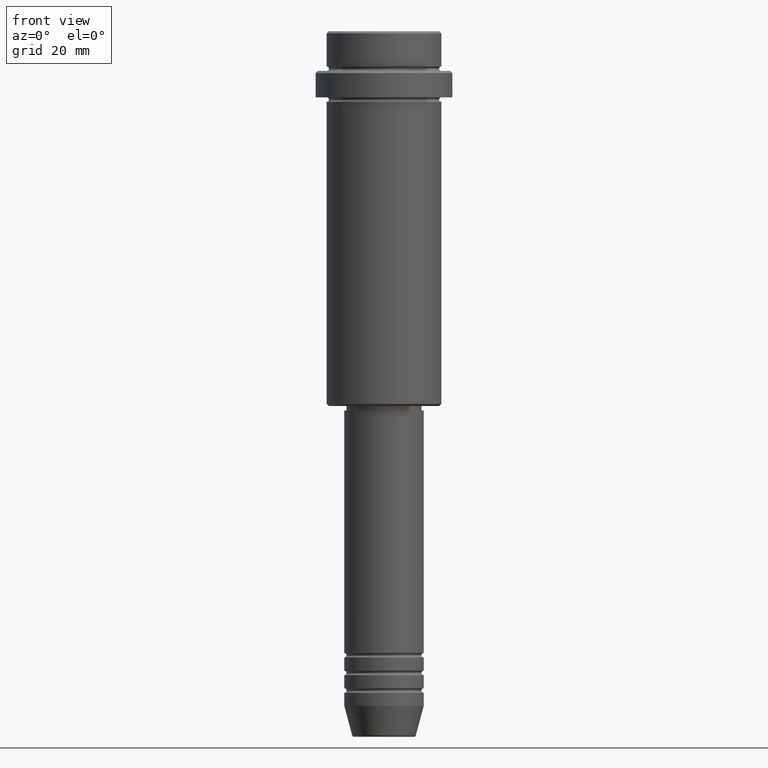
[diagram: clean part render]
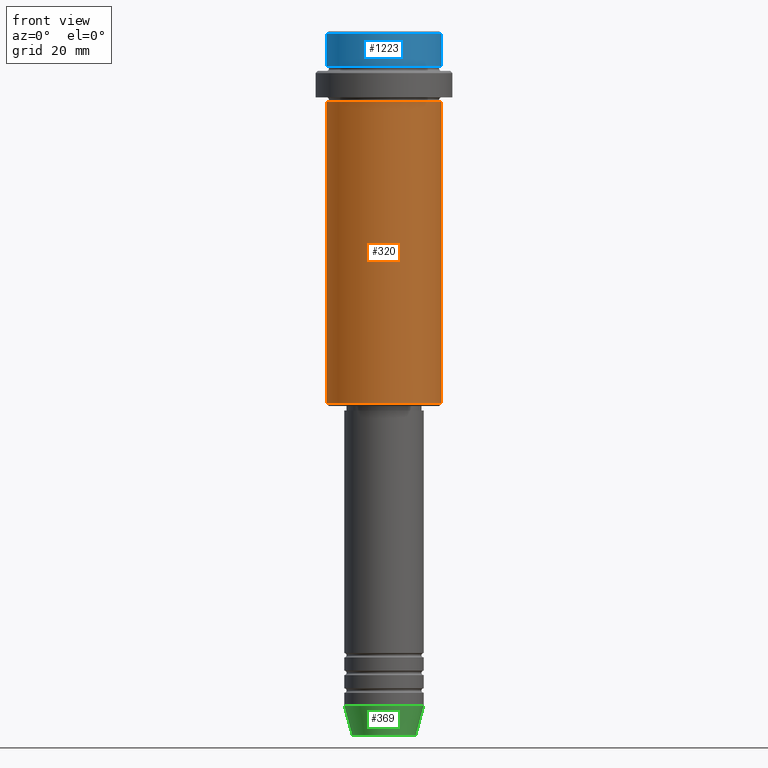
[diagram: same view with three faces highlighted in distinct colors, each labeled with its STEP entity id]
A machine part, front view with three faces highlighted in distinct colors.
Their STEP definitions:

[orange] entity #320 — the highlighted cylindrical surface (partial cylindrical patch) has radius 13 mm, axis along (-0, -0, 1).
#36 = CARTESIAN_POINT ( 'NONE',  ( 0.000000000000000000, 0.000000000000000000, -84.49999999999998579 ) ) ;
#46 = AXIS2_PLACEMENT_3D ( 'NONE', #562, #676, #1000 ) ;
#47 = CARTESIAN_POINT ( 'NONE',  ( -13.00000000000000000, 1.592040838891559095E-15, -16.00000000000000000 ) ) ;
#63 = CARTESIAN_POINT ( 'NONE',  ( 13.00000000000000000, 0.000000000000000000, 0.000000000000000000 ) ) ;
#110 = VERTEX_POINT ( 'NONE', #1179 ) ;
#124 = CYLINDRICAL_SURFACE ( 'NONE', #46, 13.00000000000000000 ) ;
#190 = VECTOR ( 'NONE', #1181, 1000.000000000000000 ) ;
#237 = VECTOR ( 'NONE', #1144, 1000.000000000000000 ) ;
#302 = CIRCLE ( 'NONE', #737, 13.00000000000000000 ) ;
#320 = ADVANCED_FACE ( 'NONE', ( #1106 ), #124, .T. ) ;
#354 = DIRECTION ( 'NONE',  ( -1.000000000000000000, 0.000000000000000000, 0.000000000000000000 ) ) ;
#393 = AXIS2_PLACEMENT_3D ( 'NONE', #36, #1113, #354 ) ;
#432 = VERTEX_POINT ( 'NONE', #722 ) ;
#441 = DIRECTION ( 'NONE',  ( -0.000000000000000000, -0.000000000000000000, 1.000000000000000000 ) ) ;
#453 = VERTEX_POINT ( 'NONE', #47 ) ;
#562 = CARTESIAN_POINT ( 'NONE',  ( 0.000000000000000000, 0.000000000000000000, 0.000000000000000000 ) ) ;
#633 = LINE ( 'NONE', #1074, #190 ) ;
#676 = DIRECTION ( 'NONE',  ( -0.000000000000000000, -0.000000000000000000, 1.000000000000000000 ) ) ;
#722 = CARTESIAN_POINT ( 'NONE',  ( 13.00000000000000000, 0.000000000000000000, -16.00000000000000000 ) ) ;
#731 = LINE ( 'NONE', #63, #237 ) ;
#737 = AXIS2_PLACEMENT_3D ( 'NONE', #1087, #441, #983 ) ;
#751 = ORIENTED_EDGE ( 'NONE', *, *, #1325, .T. ) ;
#765 = CIRCLE ( 'NONE', #393, 13.00000000000000000 ) ;
#772 = CARTESIAN_POINT ( 'NONE',  ( -13.00000000000000000, 1.592040838891559095E-15, -84.49999999999998579 ) ) ;
#855 = ORIENTED_EDGE ( 'NONE', *, *, #1004, .F. ) ;
#868 = ORIENTED_EDGE ( 'NONE', *, *, #990, .F. ) ;
#902 = EDGE_LOOP ( 'NONE', ( #855, #927, #751, #868 ) ) ;
#927 = ORIENTED_EDGE ( 'NONE', *, *, #1165, .T. ) ;
#960 = VERTEX_POINT ( 'NONE', #772 ) ;
#983 = DIRECTION ( 'NONE',  ( 1.000000000000000000, 0.000000000000000000, 0.000000000000000000 ) ) ;
#990 = EDGE_CURVE ( 'NONE', #453, #432, #302, .T. ) ;
#1000 = DIRECTION ( 'NONE',  ( 1.000000000000000000, 0.000000000000000000, 0.000000000000000000 ) ) ;
#1004 = EDGE_CURVE ( 'NONE', #960, #453, #633, .T. ) ;
#1074 = CARTESIAN_POINT ( 'NONE',  ( -13.00000000000000000, 1.592040838891559095E-15, 0.000000000000000000 ) ) ;
#1087 = CARTESIAN_POINT ( 'NONE',  ( 0.000000000000000000, 0.000000000000000000, -16.00000000000000000 ) ) ;
#1106 = FACE_OUTER_BOUND ( 'NONE', #902, .T. ) ;
#1113 = DIRECTION ( 'NONE',  ( -0.000000000000000000, -0.000000000000000000, 1.000000000000000000 ) ) ;
#1144 = DIRECTION ( 'NONE',  ( -0.000000000000000000, -0.000000000000000000, 1.000000000000000000 ) ) ;
#1165 = EDGE_CURVE ( 'NONE', #960, #110, #765, .T. ) ;
#1179 = CARTESIAN_POINT ( 'NONE',  ( 13.00000000000000000, 0.000000000000000000, -84.49999999999998579 ) ) ;
#1181 = DIRECTION ( 'NONE',  ( -0.000000000000000000, -0.000000000000000000, 1.000000000000000000 ) ) ;
#1325 = EDGE_CURVE ( 'NONE', #110, #432, #731, .T. ) ;

[blue] entity #1223 — the highlighted cylindrical surface (partial cylindrical patch) has radius 13 mm, axis along (-0, -0, 1).
#23 = AXIS2_PLACEMENT_3D ( 'NONE', #915, #1353, #933 ) ;
#53 = LINE ( 'NONE', #1153, #1125 ) ;
#70 = LINE ( 'NONE', #1164, #716 ) ;
#77 = VERTEX_POINT ( 'NONE', #196 ) ;
#122 = AXIS2_PLACEMENT_3D ( 'NONE', #929, #1138, #1383 ) ;
#162 = ORIENTED_EDGE ( 'NONE', *, *, #445, .T. ) ;
#174 = DIRECTION ( 'NONE',  ( -0.000000000000000000, -0.000000000000000000, 1.000000000000000000 ) ) ;
#188 = DIRECTION ( 'NONE',  ( -0.000000000000000000, -0.000000000000000000, 1.000000000000000000 ) ) ;
#196 = CARTESIAN_POINT ( 'NONE',  ( -12.99999999999999822, 1.592040838891558898E-15, -7.999999999999998224 ) ) ;
#208 = ORIENTED_EDGE ( 'NONE', *, *, #823, .F. ) ;
#298 = CIRCLE ( 'NONE', #1103, 12.99999999999999822 ) ;
#314 = EDGE_LOOP ( 'NONE', ( #208, #162, #1269, #1292 ) ) ;
#330 = DIRECTION ( 'NONE',  ( 1.000000000000000000, 0.000000000000000000, 0.000000000000000000 ) ) ;
#355 = CARTESIAN_POINT ( 'NONE',  ( 0.000000000000000000, 0.000000000000000000, -0.4999999999999622524 ) ) ;
#445 = EDGE_CURVE ( 'NONE', #77, #1068, #987, .T. ) ;
#658 = EDGE_CURVE ( 'NONE', #1256, #1104, #298, .T. ) ;
#683 = DIRECTION ( 'NONE',  ( 0.000000000000000000, 0.000000000000000000, -1.000000000000000000 ) ) ;
#716 = VECTOR ( 'NONE', #188, 1000.000000000000000 ) ;
#782 = CARTESIAN_POINT ( 'NONE',  ( -12.99999999999999822, 1.592040838891558898E-15, -0.4999999999999622524 ) ) ;
#823 = EDGE_CURVE ( 'NONE', #77, #1104, #53, .T. ) ;
#837 = CARTESIAN_POINT ( 'NONE',  ( 12.99999999999999822, 0.000000000000000000, -0.4999999999999622524 ) ) ;
#915 = CARTESIAN_POINT ( 'NONE',  ( 0.000000000000000000, 0.000000000000000000, -7.999999999999998224 ) ) ;
#929 = CARTESIAN_POINT ( 'NONE',  ( 0.000000000000000000, 0.000000000000000000, 0.000000000000000000 ) ) ;
#933 = DIRECTION ( 'NONE',  ( 1.000000000000000000, 0.000000000000000000, 0.000000000000000000 ) ) ;
#987 = CIRCLE ( 'NONE', #23, 12.99999999999999822 ) ;
#1039 = FACE_OUTER_BOUND ( 'NONE', #314, .T. ) ;
#1068 = VERTEX_POINT ( 'NONE', #1100 ) ;
#1100 = CARTESIAN_POINT ( 'NONE',  ( 12.99999999999999822, 0.000000000000000000, -7.999999999999998224 ) ) ;
#1103 = AXIS2_PLACEMENT_3D ( 'NONE', #355, #683, #330 ) ;
#1104 = VERTEX_POINT ( 'NONE', #782 ) ;
#1125 = VECTOR ( 'NONE', #174, 1000.000000000000000 ) ;
#1138 = DIRECTION ( 'NONE',  ( -0.000000000000000000, -0.000000000000000000, 1.000000000000000000 ) ) ;
#1153 = CARTESIAN_POINT ( 'NONE',  ( -12.99999999999999822, 1.592040838891558898E-15, 0.000000000000000000 ) ) ;
#1164 = CARTESIAN_POINT ( 'NONE',  ( 12.99999999999999822, 0.000000000000000000, 0.000000000000000000 ) ) ;
#1223 = ADVANCED_FACE ( 'NONE', ( #1039 ), #1267, .T. ) ;
#1256 = VERTEX_POINT ( 'NONE', #837 ) ;
#1267 = CYLINDRICAL_SURFACE ( 'NONE', #122, 12.99999999999999822 ) ;
#1269 = ORIENTED_EDGE ( 'NONE', *, *, #1361, .T. ) ;
#1292 = ORIENTED_EDGE ( 'NONE', *, *, #658, .T. ) ;
#1353 = DIRECTION ( 'NONE',  ( -0.000000000000000000, -0.000000000000000000, 1.000000000000000000 ) ) ;
#1361 = EDGE_CURVE ( 'NONE', #1068, #1256, #70, .T. ) ;
#1383 = DIRECTION ( 'NONE',  ( 1.000000000000000000, 0.000000000000000000, 0.000000000000000000 ) ) ;

[green] entity #369 — the highlighted conical surface has half-angle 15 deg.
#39 = ORIENTED_EDGE ( 'NONE', *, *, #1183, .F. ) ;
#48 = AXIS2_PLACEMENT_3D ( 'NONE', #485, #924, #1368 ) ;
#73 = AXIS2_PLACEMENT_3D ( 'NONE', #795, #134, #1006 ) ;
#83 = EDGE_CURVE ( 'NONE', #1049, #227, #730, .T. ) ;
#134 = DIRECTION ( 'NONE',  ( -0.000000000000000000, -0.000000000000000000, 1.000000000000000000 ) ) ;
#182 = VECTOR ( 'NONE', #1162, 1000.000000000000000 ) ;
#227 = VERTEX_POINT ( 'NONE', #1020 ) ;
#284 = LINE ( 'NONE', #611, #344 ) ;
#344 = VECTOR ( 'NONE', #807, 1000.000000000000000 ) ;
#356 = EDGE_CURVE ( 'NONE', #1141, #908, #284, .T. ) ;
#364 = CIRCLE ( 'NONE', #48, 7.223655072137188604 ) ;
#369 = ADVANCED_FACE ( 'NONE', ( #1029 ), #1008, .T. ) ;
#385 = AXIS2_PLACEMENT_3D ( 'NONE', #1142, #476, #1245 ) ;
#467 = EDGE_CURVE ( 'NONE', #1141, #1049, #364, .T. ) ;
#476 = DIRECTION ( 'NONE',  ( -0.000000000000000000, -0.000000000000000000, 1.000000000000000000 ) ) ;
#485 = CARTESIAN_POINT ( 'NONE',  ( 0.000000000000000000, 0.000000000000000000, -159.6294095225512706 ) ) ;
#539 = ORIENTED_EDGE ( 'NONE', *, *, #83, .T. ) ;
#566 = CARTESIAN_POINT ( 'NONE',  ( -7.223655072137189492, 9.934123627281765110E-16, -159.6294095225512706 ) ) ;
#592 = EDGE_LOOP ( 'NONE', ( #1122, #1332, #539, #39 ) ) ;
#611 = CARTESIAN_POINT ( 'NONE',  ( -9.000000000000000000, 1.102182119232617714E-15, -153.0000000000000000 ) ) ;
#730 = LINE ( 'NONE', #852, #182 ) ;
#795 = CARTESIAN_POINT ( 'NONE',  ( 0.000000000000000000, 0.000000000000000000, -153.0000000000000000 ) ) ;
#807 = DIRECTION ( 'NONE',  ( -0.2588190451025213501, 3.169619151431772337E-17, 0.9659258262890680902 ) ) ;
#820 = CARTESIAN_POINT ( 'NONE',  ( -9.000000000000000000, 1.102182119232617714E-15, -153.0000000000000000 ) ) ;
#852 = CARTESIAN_POINT ( 'NONE',  ( 9.000000000000000000, 0.000000000000000000, -153.0000000000000000 ) ) ;
#908 = VERTEX_POINT ( 'NONE', #820 ) ;
#924 = DIRECTION ( 'NONE',  ( -0.000000000000000000, -0.000000000000000000, 1.000000000000000000 ) ) ;
#1006 = DIRECTION ( 'NONE',  ( 1.000000000000000000, 0.000000000000000000, 0.000000000000000000 ) ) ;
#1008 = CONICAL_SURFACE ( 'NONE', #385, 9.000000000000000000, 0.2617993877991500740 ) ;
#1020 = CARTESIAN_POINT ( 'NONE',  ( 9.000000000000000000, 0.000000000000000000, -153.0000000000000000 ) ) ;
#1029 = FACE_OUTER_BOUND ( 'NONE', #592, .T. ) ;
#1049 = VERTEX_POINT ( 'NONE', #1318 ) ;
#1107 = CIRCLE ( 'NONE', #73, 9.000000000000000000 ) ;
#1122 = ORIENTED_EDGE ( 'NONE', *, *, #356, .F. ) ;
#1141 = VERTEX_POINT ( 'NONE', #566 ) ;
#1142 = CARTESIAN_POINT ( 'NONE',  ( 0.000000000000000000, 0.000000000000000000, -153.0000000000000000 ) ) ;
#1162 = DIRECTION ( 'NONE',  ( 0.2588190451025213501, 0.000000000000000000, 0.9659258262890680902 ) ) ;
#1183 = EDGE_CURVE ( 'NONE', #908, #227, #1107, .T. ) ;
#1245 = DIRECTION ( 'NONE',  ( 1.000000000000000000, 0.000000000000000000, 0.000000000000000000 ) ) ;
#1318 = CARTESIAN_POINT ( 'NONE',  ( 7.223655072137188604, 0.000000000000000000, -159.6294095225512706 ) ) ;
#1332 = ORIENTED_EDGE ( 'NONE', *, *, #467, .T. ) ;
#1368 = DIRECTION ( 'NONE',  ( 1.000000000000000000, 0.000000000000000000, 0.000000000000000000 ) ) ;